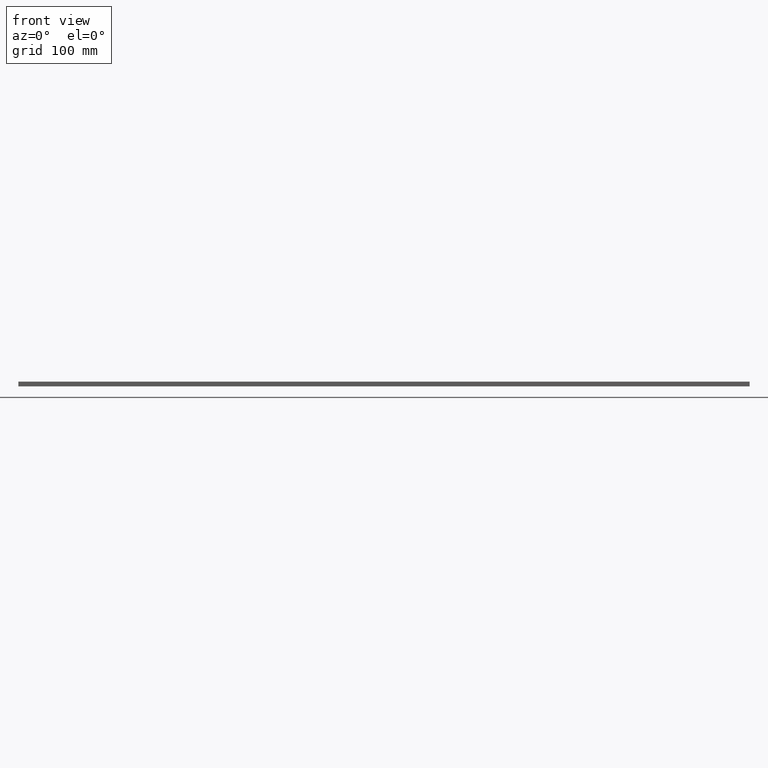
[diagram: clean part render]
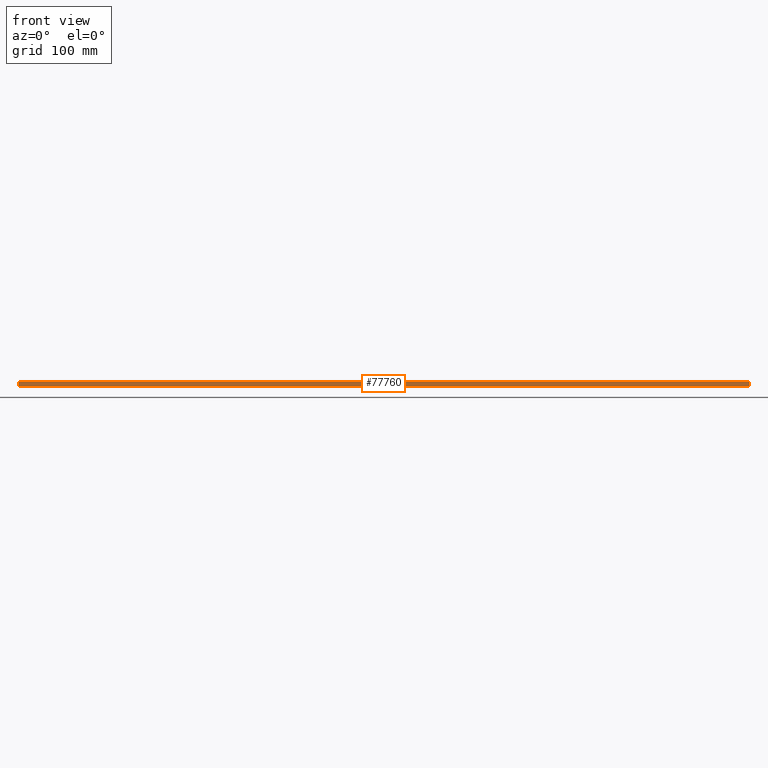
[diagram: same view with one face highlighted and labeled with its STEP entity id]
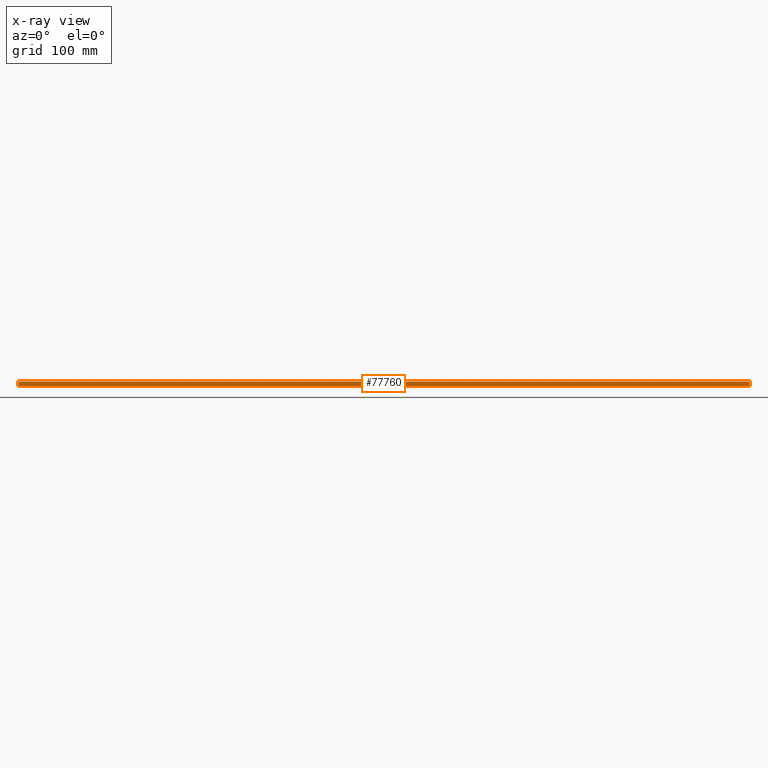
[diagram: x-ray of the same camera — body ghosted, the highlighted face saturated]
A machine part, front view. The second image highlights one B-rep face of the part: STEP entity #77760.
The next image is the same camera in x-ray: the body ghosted, the highlighted face saturated — about 0% of this face is hidden behind the body in this view.
In plain terms, the highlighted planar face has unit normal (0, -1, 0).
Its self-contained STEP definition (entity closure, byte-faithful):
#4328 = VERTEX_POINT ( 'NONE', #34932 ) ;
#4332 = VERTEX_POINT ( 'NONE', #34934 ) ;
#4353 = VERTEX_POINT ( 'NONE', #58572 ) ;
#4402 = VERTEX_POINT ( 'NONE', #58617 ) ;
#19379 = ORIENTED_EDGE ( 'NONE', *, *, #78378, .T. ) ;
#19382 = ORIENTED_EDGE ( 'NONE', *, *, #78336, .T. ) ;
#19401 = ORIENTED_EDGE ( 'NONE', *, *, #78369, .T. ) ;
#19420 = ORIENTED_EDGE ( 'NONE', *, *, #78439, .T. ) ;
#26990 = PLANE ( 'NONE',  #44439 ) ;
#26992 = FACE_OUTER_BOUND ( 'NONE', #30769, .T. ) ;
#26995 = CARTESIAN_POINT ( 'NONE',  ( 0.0000000000000000000, 0.0000000000000000000, -6.500000000000000900 ) ) ;
#27001 = DIRECTION ( 'NONE',  ( 0.0000000000000000000, -1.000000000000000000, 0.0000000000000000000 ) ) ;
#27005 = DIRECTION ( 'NONE',  ( 0.0000000000000000000, -0.0000000000000000000, -1.000000000000000000 ) ) ;
#30769 = EDGE_LOOP ( 'NONE', ( #19401, #19382, #19420, #19379 ) ) ;
#32216 = DIRECTION ( 'NONE',  ( -1.000000000000000000, -0.0000000000000000000, -0.0000000000000000000 ) ) ;
#32238 = CARTESIAN_POINT ( 'NONE',  ( 0.0000000000000000000, 0.0000000000000000000, 0.0000000000000000000 ) ) ;
#32291 = LINE ( 'NONE', #32238, #50538 ) ;
#32412 = LINE ( 'NONE', #32414, #50629 ) ;
#32414 = CARTESIAN_POINT ( 'NONE',  ( 988.0000000000000000, 0.0000000000000000000, -6.500000000000000900 ) ) ;
#32512 = CARTESIAN_POINT ( 'NONE',  ( 0.0000000000000000000, 0.0000000000000000000, -6.500000000000000900 ) ) ;
#32518 = DIRECTION ( 'NONE',  ( 1.000000000000000000, 0.0000000000000000000, 0.0000000000000000000 ) ) ;
#32532 = LINE ( 'NONE', #32512, #50756 ) ;
#32568 = DIRECTION ( 'NONE',  ( -0.0000000000000000000, 0.0000000000000000000, 1.000000000000000000 ) ) ;
#33049 = CARTESIAN_POINT ( 'NONE',  ( 0.0000000000000000000, 0.0000000000000000000, -6.500000000000000900 ) ) ;
#33096 = LINE ( 'NONE', #33049, #50948 ) ;
#33120 = DIRECTION ( 'NONE',  ( 0.0000000000000000000, -0.0000000000000000000, -1.000000000000000000 ) ) ;
#34932 = CARTESIAN_POINT ( 'NONE',  ( 988.0000000000000000, 0.0000000000000000000, 0.0000000000000000000 ) ) ;
#34934 = CARTESIAN_POINT ( 'NONE',  ( 988.0000000000000000, 0.0000000000000000000, -6.500000000000000900 ) ) ;
#44439 = AXIS2_PLACEMENT_3D ( 'NONE', #26995, #27001, #27005 ) ;
#50538 = VECTOR ( 'NONE', #32216, 1000.000000000000000 ) ;
#50629 = VECTOR ( 'NONE', #32568, 1000.000000000000000 ) ;
#50756 = VECTOR ( 'NONE', #32518, 1000.000000000000000 ) ;
#50948 = VECTOR ( 'NONE', #33120, 1000.000000000000000 ) ;
#58572 = CARTESIAN_POINT ( 'NONE',  ( 0.0000000000000000000, 0.0000000000000000000, -6.500000000000000900 ) ) ;
#58617 = CARTESIAN_POINT ( 'NONE',  ( 0.0000000000000000000, 0.0000000000000000000, 0.0000000000000000000 ) ) ;
#77760 = ADVANCED_FACE ( 'NONE', ( #26992 ), #26990, .T. ) ;
#78336 = EDGE_CURVE ( 'NONE', #4328, #4402, #32291, .T. ) ;
#78369 = EDGE_CURVE ( 'NONE', #4332, #4328, #32412, .T. ) ;
#78378 = EDGE_CURVE ( 'NONE', #4353, #4332, #32532, .T. ) ;
#78439 = EDGE_CURVE ( 'NONE', #4402, #4353, #33096, .T. ) ;